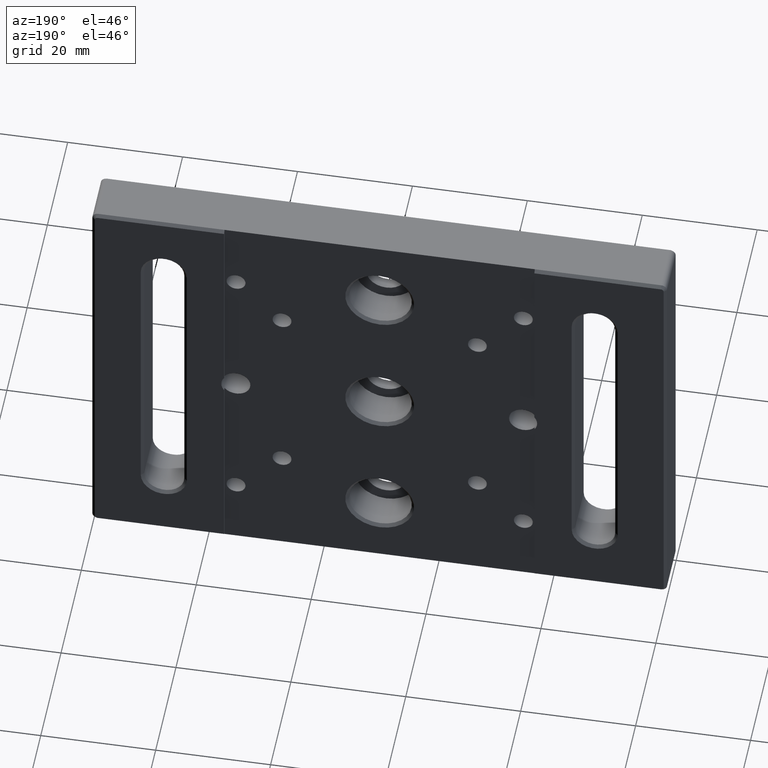
[diagram: clean part render]
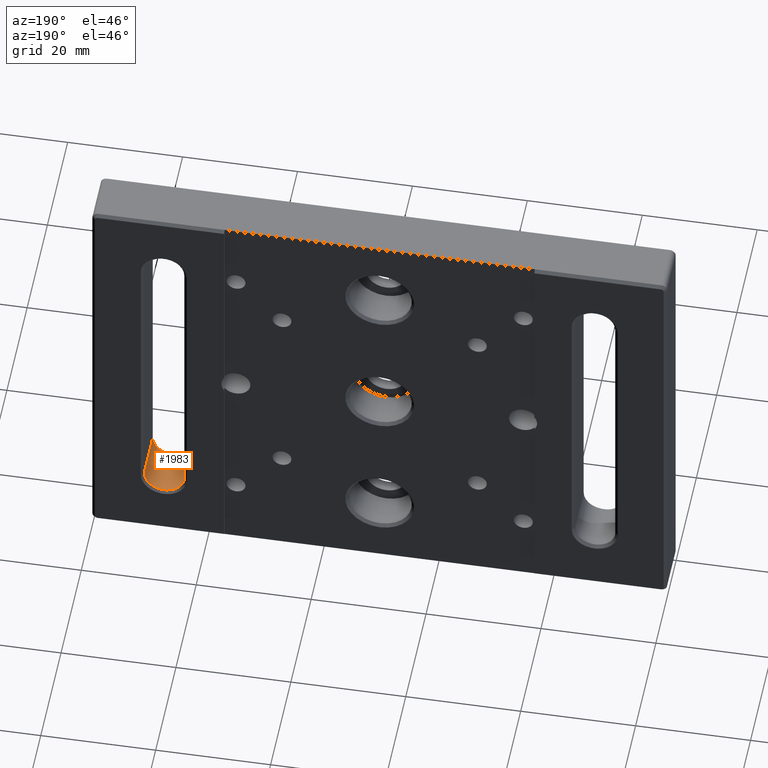
[diagram: same view with one face highlighted and labeled with its STEP entity id]
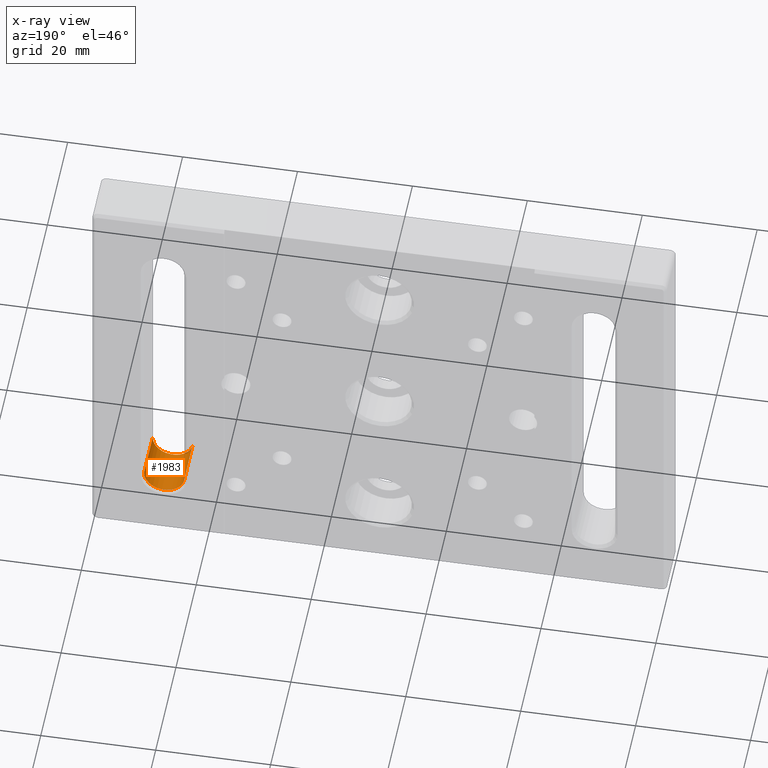
[diagram: x-ray of the same camera — body ghosted, the highlighted face saturated]
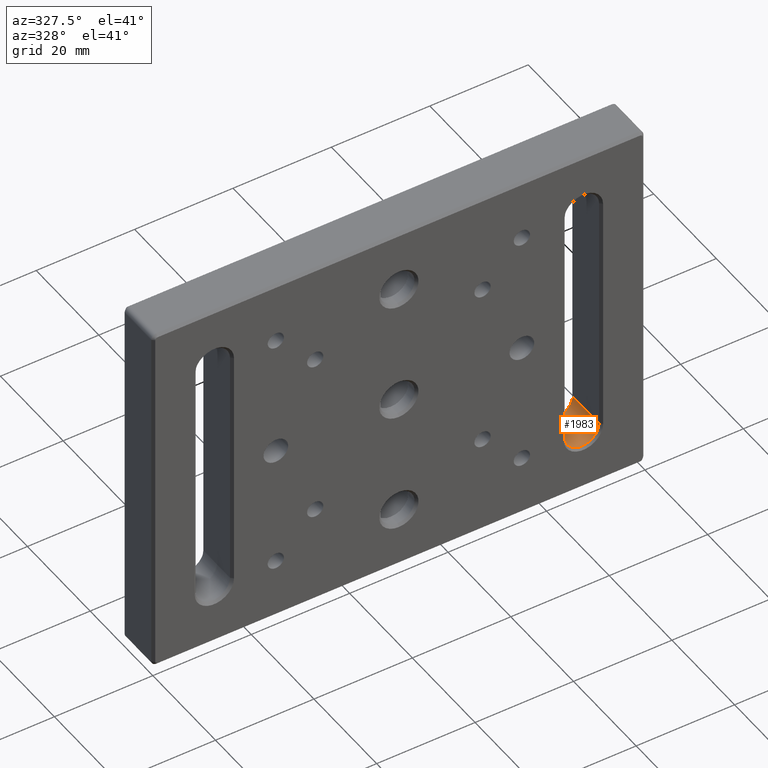
[diagram: same view with one face highlighted and labeled with its STEP entity id]
A machine part, auxiliary view. The second image highlights one B-rep face of the part: STEP entity #1983.
The next image is the same camera in x-ray: the body ghosted, the highlighted face saturated — about 1% of this face is hidden behind the body in this view.
A second angle (auxiliary view) of the same face is appended — the face is thin or edge-on in the first view.
In plain terms, the highlighted cylindrical surface (edge-blend (fillet) strip) has radius 3.5 mm, axis along (-0, -1, -0).
Its self-contained STEP definition (entity closure, byte-faithful):
#214 = CARTESIAN_POINT ( 'NONE',  ( 84.00000000000000000, 9.500000000000000000, -62.50000000000000000 ) ) ;
#215 = DIRECTION ( 'NONE',  ( -0.0000000000000000000, -1.000000000000000000, -0.0000000000000000000 ) ) ;
#216 = DIRECTION ( 'NONE',  ( -0.0000000000000000000, -1.000000000000000000, -0.0000000000000000000 ) ) ;
#219 = CARTESIAN_POINT ( 'NONE',  ( 91.00000000000001400, 9.500000000000000000, -62.50000000000000000 ) ) ;
#225 = CARTESIAN_POINT ( 'NONE',  ( 87.50000000000001400, 9.000000000000026600, -62.50000000000000000 ) ) ;
#226 = DIRECTION ( 'NONE',  ( 0.0000000000000000000, 1.000000000000000000, 0.0000000000000000000 ) ) ;
#227 = DIRECTION ( 'NONE',  ( 0.0000000000000000000, 0.0000000000000000000, -1.000000000000000000 ) ) ;
#230 = CARTESIAN_POINT ( 'NONE',  ( 87.50000000000001400, 0.4999999999999865700, -62.50000000000000000 ) ) ;
#231 = DIRECTION ( 'NONE',  ( -0.0000000000000000000, -1.000000000000000000, -0.0000000000000000000 ) ) ;
#232 = DIRECTION ( 'NONE',  ( 0.0000000000000000000, 0.0000000000000000000, -1.000000000000000000 ) ) ;
#280 = AXIS2_PLACEMENT_3D ( 'NONE', #225, #226, #227 ) ;
#281 = AXIS2_PLACEMENT_3D ( 'NONE', #230, #231, #232 ) ;
#314 = AXIS2_PLACEMENT_3D ( 'NONE', #1321, #1319, #1314 ) ;
#819 = EDGE_CURVE ( 'NONE', #966, #2354, #1477, .T. ) ;
#822 = EDGE_CURVE ( 'NONE', #967, #958, #1468, .T. ) ;
#823 = EDGE_CURVE ( 'NONE', #967, #966, #1457, .T. ) ;
#825 = EDGE_CURVE ( 'NONE', #2354, #958, #1454, .T. ) ;
#958 = VERTEX_POINT ( 'NONE', #1221 ) ;
#966 = VERTEX_POINT ( 'NONE', #1229 ) ;
#967 = VERTEX_POINT ( 'NONE', #1230 ) ;
#1221 = CARTESIAN_POINT ( 'NONE',  ( 91.00000000000001400, 0.4999999999999865700, -62.50000000000000000 ) ) ;
#1229 = CARTESIAN_POINT ( 'NONE',  ( 84.00000000000000000, 9.000000000000026600, -62.50000000000000000 ) ) ;
#1230 = CARTESIAN_POINT ( 'NONE',  ( 91.00000000000001400, 9.000000000000026600, -62.50000000000000000 ) ) ;
#1314 = DIRECTION ( 'NONE',  ( 0.0000000000000000000, 0.0000000000000000000, -1.000000000000000000 ) ) ;
#1319 = DIRECTION ( 'NONE',  ( -0.0000000000000000000, -1.000000000000000000, -0.0000000000000000000 ) ) ;
#1321 = CARTESIAN_POINT ( 'NONE',  ( 87.50000000000001400, 9.500000000000000000, -62.50000000000000000 ) ) ;
#1384 = CARTESIAN_POINT ( 'NONE',  ( 84.00000000000000000, 0.4999999999999865700, -62.50000000000000000 ) ) ;
#1454 = CIRCLE ( 'NONE', #281, 3.500000000000003100 ) ;
#1456 = VECTOR ( 'NONE', #216, 1000.000000000000000 ) ;
#1457 = CIRCLE ( 'NONE', #280, 3.500000000000003100 ) ;
#1461 = VECTOR ( 'NONE', #215, 1000.000000000000000 ) ;
#1468 = LINE ( 'NONE', #219, #1456 ) ;
#1477 = LINE ( 'NONE', #214, #1461 ) ;
#1983 = ADVANCED_FACE ( 'NONE', ( #2075 ), #2071, .F. ) ;
#2071 = CYLINDRICAL_SURFACE ( 'NONE', #314, 3.500000000000003100 ) ;
#2075 = FACE_OUTER_BOUND ( 'NONE', #2338, .T. ) ;
#2260 = ORIENTED_EDGE ( 'NONE', *, *, #823, .T. ) ;
#2263 = ORIENTED_EDGE ( 'NONE', *, *, #822, .F. ) ;
#2265 = ORIENTED_EDGE ( 'NONE', *, *, #825, .T. ) ;
#2268 = ORIENTED_EDGE ( 'NONE', *, *, #819, .T. ) ;
#2338 = EDGE_LOOP ( 'NONE', ( #2268, #2265, #2263, #2260 ) ) ;
#2354 = VERTEX_POINT ( 'NONE', #1384 ) ;